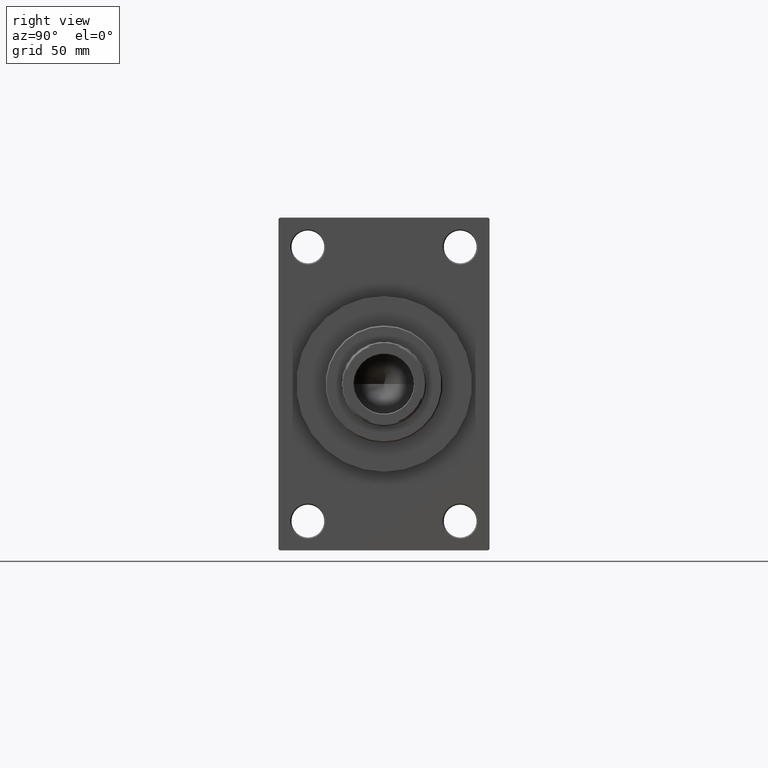
[diagram: clean part render]
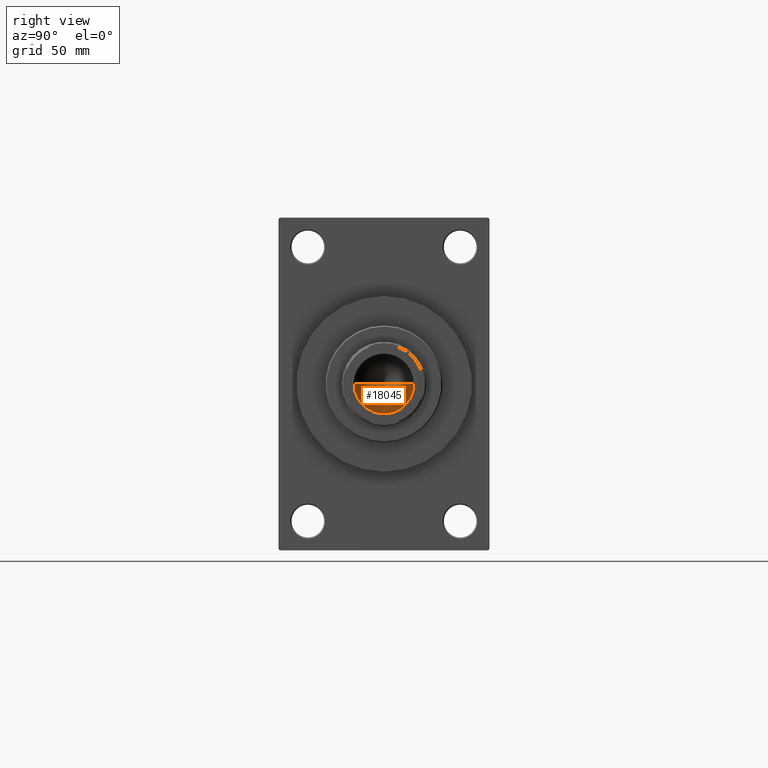
[diagram: same view with one face highlighted and labeled with its STEP entity id]
A machine part, right view. The second image highlights one B-rep face of the part: STEP entity #18045.
In plain terms, the highlighted conical surface has half-angle 59 deg.
Its self-contained STEP definition (entity closure, byte-faithful):
#4615 = CARTESIAN_POINT ( 'NONE',  ( -12.74999999999998934, 1.561424668912873928E-15, 165.0000000000000284 ) ) ;
#5321 = EDGE_LOOP ( 'NONE', ( #32079, #37148, #20456 ) ) ;
#6007 = FACE_OUTER_BOUND ( 'NONE', #5321, .T. ) ;
#9116 = VECTOR ( 'NONE', #12064, 1000.000000000000000 ) ;
#9168 = VERTEX_POINT ( 'NONE', #23392 ) ;
#9484 = AXIS2_PLACEMENT_3D ( 'NONE', #43317, #39976, #39738 ) ;
#9568 = VERTEX_POINT ( 'NONE', #34791 ) ;
#12064 = DIRECTION ( 'NONE',  ( 0.8571673007021110013, 0.000000000000000000, 0.5150380749100563760 ) ) ;
#13862 = CARTESIAN_POINT ( 'NONE',  ( 0.000000000000000000, 0.000000000000000000, 165.0000000000000284 ) ) ;
#14994 = AXIS2_PLACEMENT_3D ( 'NONE', #13862, #21273, #20804 ) ;
#16592 = CARTESIAN_POINT ( 'NONE',  ( 12.74999999999998934, 0.000000000000000000, 165.0000000000000284 ) ) ;
#18045 = ADVANCED_FACE ( 'NONE', ( #6007 ), #31771, .F. ) ;
#18962 = LINE ( 'NONE', #4615, #29343 ) ;
#19715 = LINE ( 'NONE', #16592, #9116 ) ;
#20456 = ORIENTED_EDGE ( 'NONE', *, *, #44209, .T. ) ;
#20804 = DIRECTION ( 'NONE',  ( 1.000000000000000000, 0.000000000000000000, 0.000000000000000000 ) ) ;
#21273 = DIRECTION ( 'NONE',  ( -0.000000000000000000, -0.000000000000000000, 1.000000000000000000 ) ) ;
#23392 = CARTESIAN_POINT ( 'NONE',  ( -12.74999999999998934, 1.561424668912873928E-15, 165.0000000000000284 ) ) ;
#24826 = CARTESIAN_POINT ( 'NONE',  ( 12.74999999999998934, 0.000000000000000000, 165.0000000000000284 ) ) ;
#29343 = VECTOR ( 'NONE', #44957, 1000.000000000000000 ) ;
#29644 = EDGE_CURVE ( 'NONE', #9568, #41410, #19715, .T. ) ;
#31771 = CONICAL_SURFACE ( 'NONE', #14994, 12.74999999999998934, 1.029744258676651869 ) ;
#32079 = ORIENTED_EDGE ( 'NONE', *, *, #44365, .F. ) ;
#32371 = CIRCLE ( 'NONE', #9484, 12.74999999999998934 ) ;
#34791 = CARTESIAN_POINT ( 'NONE',  ( -1.410643066818227497E-14, 0.000000000000000000, 157.3390271073986071 ) ) ;
#37148 = ORIENTED_EDGE ( 'NONE', *, *, #29644, .T. ) ;
#39738 = DIRECTION ( 'NONE',  ( 1.000000000000000000, 0.000000000000000000, 0.000000000000000000 ) ) ;
#39976 = DIRECTION ( 'NONE',  ( -0.000000000000000000, -0.000000000000000000, 1.000000000000000000 ) ) ;
#41410 = VERTEX_POINT ( 'NONE', #24826 ) ;
#43317 = CARTESIAN_POINT ( 'NONE',  ( 0.000000000000000000, 0.000000000000000000, 165.0000000000000284 ) ) ;
#44209 = EDGE_CURVE ( 'NONE', #41410, #9168, #32371, .T. ) ;
#44365 = EDGE_CURVE ( 'NONE', #9568, #9168, #18962, .T. ) ;
#44957 = DIRECTION ( 'NONE',  ( -0.8571673007021110013, 1.049727191138617093E-16, 0.5150380749100563760 ) ) ;